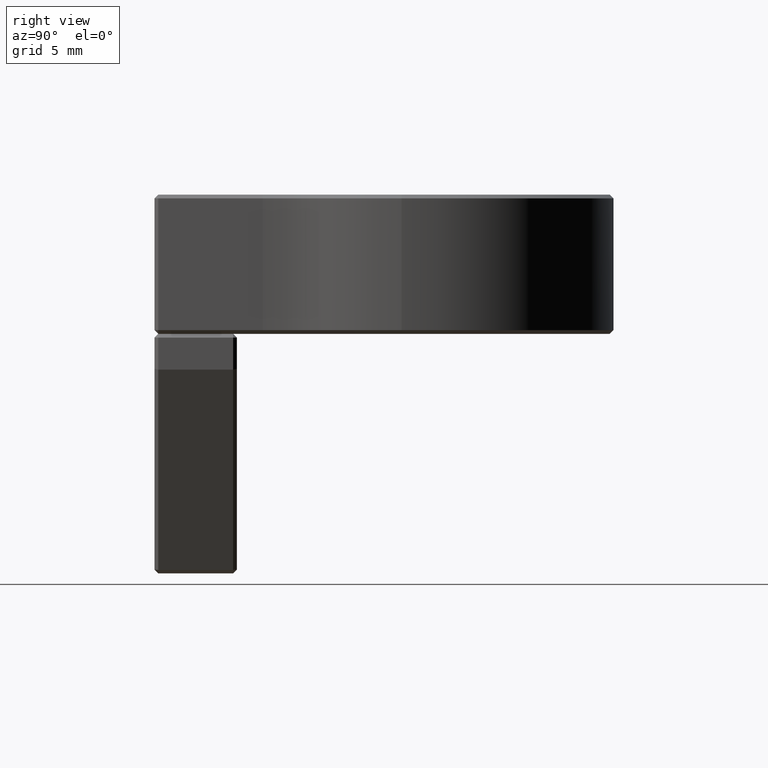
[diagram: clean part render]
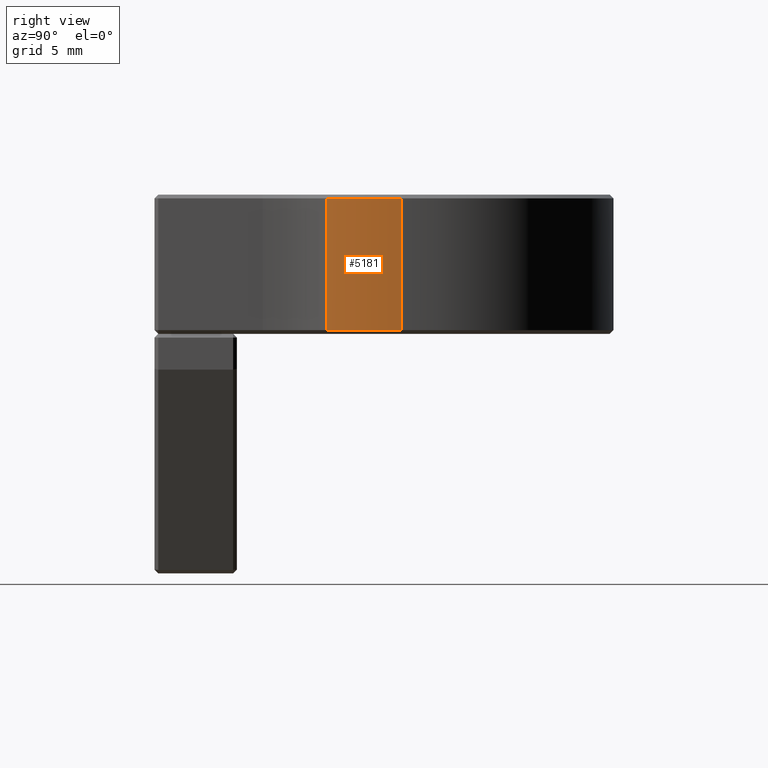
[diagram: same view with one face highlighted and labeled with its STEP entity id]
A machine part, right view. The second image highlights one B-rep face of the part: STEP entity #5181.
In plain terms, the highlighted cylindrical surface (partial cylindrical patch) has radius 14.2 mm, axis along (0, 0, 1).
Its self-contained STEP definition (entity closure, byte-faithful):
#699 = EDGE_LOOP ( 'NONE', ( #5900, #4272, #3048, #2501 ) ) ;
#744 = EDGE_CURVE ( 'NONE', #845, #4035, #1648, .T. ) ;
#808 = CYLINDRICAL_SURFACE ( 'NONE', #1398, 14.20000000000000107 ) ;
#845 = VERTEX_POINT ( 'NONE', #2907 ) ;
#985 = EDGE_CURVE ( 'NONE', #4035, #1361, #6781, .T. ) ;
#1258 = CARTESIAN_POINT ( 'NONE',  ( 13.27862595419847658, 11.46829126752286321, -9.300000000000000711 ) ) ;
#1361 = VERTEX_POINT ( 'NONE', #5323 ) ;
#1398 = AXIS2_PLACEMENT_3D ( 'NONE', #6327, #4775, #3820 ) ;
#1648 = LINE ( 'NONE', #1258, #5249 ) ;
#1939 = AXIS2_PLACEMENT_3D ( 'NONE', #3688, #4718, #6714 ) ;
#2501 = ORIENTED_EDGE ( 'NONE', *, *, #744, .T. ) ;
#2622 = VECTOR ( 'NONE', #4400, 1000.000000000000000 ) ;
#2741 = CARTESIAN_POINT ( 'NONE',  ( 13.27862595419847658, 11.46829126752286321, -9.050000000000002487 ) ) ;
#2782 = VERTEX_POINT ( 'NONE', #3118 ) ;
#2907 = CARTESIAN_POINT ( 'NONE',  ( 13.27862595419847658, 11.46829126752286321, -0.2499999999999967526 ) ) ;
#3044 = EDGE_CURVE ( 'NONE', #2782, #845, #4341, .T. ) ;
#3048 = ORIENTED_EDGE ( 'NONE', *, *, #3044, .T. ) ;
#3066 = CARTESIAN_POINT ( 'NONE',  ( 0.000000000000000000, 16.50000000000000000, -0.2499999999999967526 ) ) ;
#3082 = EDGE_CURVE ( 'NONE', #1361, #2782, #4811, .T. ) ;
#3118 = CARTESIAN_POINT ( 'NONE',  ( 14.20000000000000107, 16.50000000000000000, -0.2499999999999967526 ) ) ;
#3361 = FACE_OUTER_BOUND ( 'NONE', #699, .T. ) ;
#3577 = DIRECTION ( 'NONE',  ( 0.000000000000000000, 0.000000000000000000, -1.000000000000000000 ) ) ;
#3688 = CARTESIAN_POINT ( 'NONE',  ( 0.000000000000000000, 16.50000000000000000, -9.050000000000002487 ) ) ;
#3820 = DIRECTION ( 'NONE',  ( 1.000000000000000000, 0.000000000000000000, 0.000000000000000000 ) ) ;
#3909 = DIRECTION ( 'NONE',  ( -0.000000000000000000, -0.000000000000000000, -1.000000000000000000 ) ) ;
#4035 = VERTEX_POINT ( 'NONE', #2741 ) ;
#4272 = ORIENTED_EDGE ( 'NONE', *, *, #3082, .T. ) ;
#4341 = CIRCLE ( 'NONE', #5229, 14.20000000000000107 ) ;
#4400 = DIRECTION ( 'NONE',  ( 0.000000000000000000, 0.000000000000000000, 1.000000000000000000 ) ) ;
#4539 = DIRECTION ( 'NONE',  ( 1.000000000000000000, 0.000000000000000000, 0.000000000000000000 ) ) ;
#4718 = DIRECTION ( 'NONE',  ( -0.000000000000000000, -0.000000000000000000, 1.000000000000000000 ) ) ;
#4775 = DIRECTION ( 'NONE',  ( 0.000000000000000000, 0.000000000000000000, 1.000000000000000000 ) ) ;
#4811 = LINE ( 'NONE', #5970, #2622 ) ;
#5181 = ADVANCED_FACE ( 'NONE', ( #3361 ), #808, .T. ) ;
#5229 = AXIS2_PLACEMENT_3D ( 'NONE', #3066, #3577, #4539 ) ;
#5249 = VECTOR ( 'NONE', #3909, 1000.000000000000000 ) ;
#5323 = CARTESIAN_POINT ( 'NONE',  ( 14.20000000000000107, 16.50000000000000000, -9.050000000000002487 ) ) ;
#5900 = ORIENTED_EDGE ( 'NONE', *, *, #985, .T. ) ;
#5970 = CARTESIAN_POINT ( 'NONE',  ( 14.20000000000000107, 16.50000000000000000, -9.300000000000000711 ) ) ;
#6327 = CARTESIAN_POINT ( 'NONE',  ( 0.000000000000000000, 16.50000000000000000, -9.300000000000000711 ) ) ;
#6714 = DIRECTION ( 'NONE',  ( 1.000000000000000000, 0.000000000000000000, 0.000000000000000000 ) ) ;
#6781 = CIRCLE ( 'NONE', #1939, 14.20000000000000107 ) ;